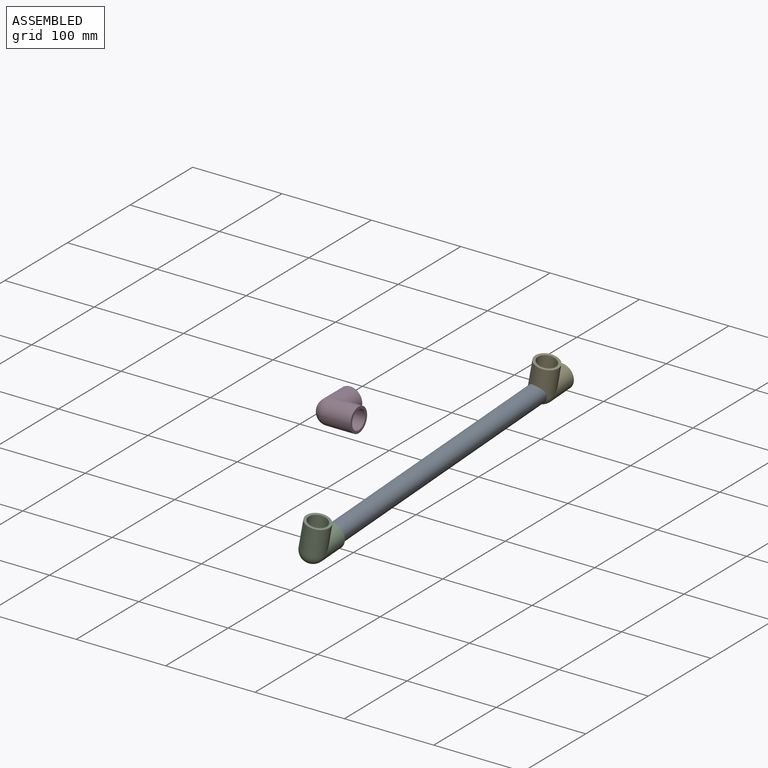
[diagram: assembled view]
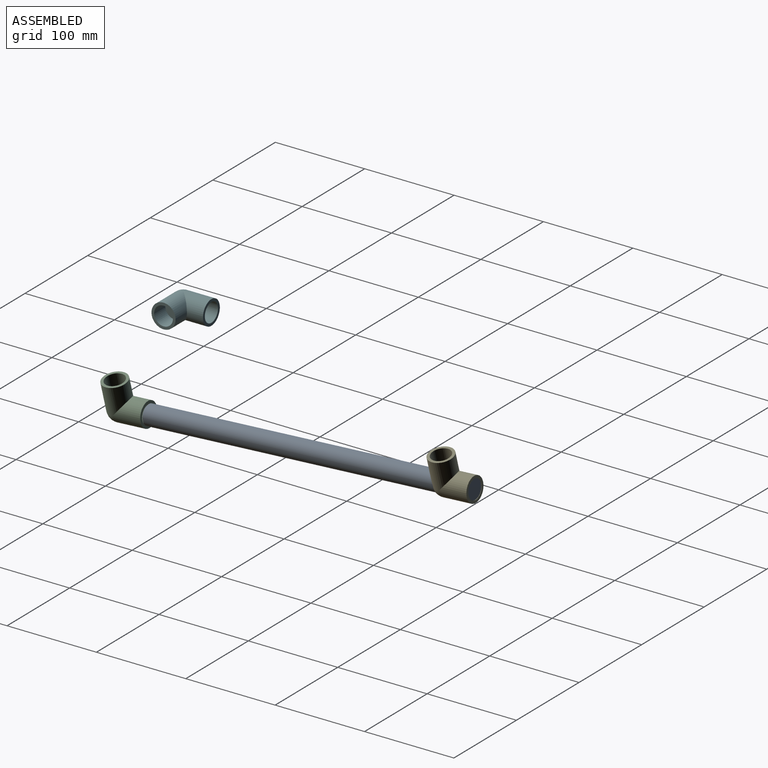
[diagram: assembled view, second angle]
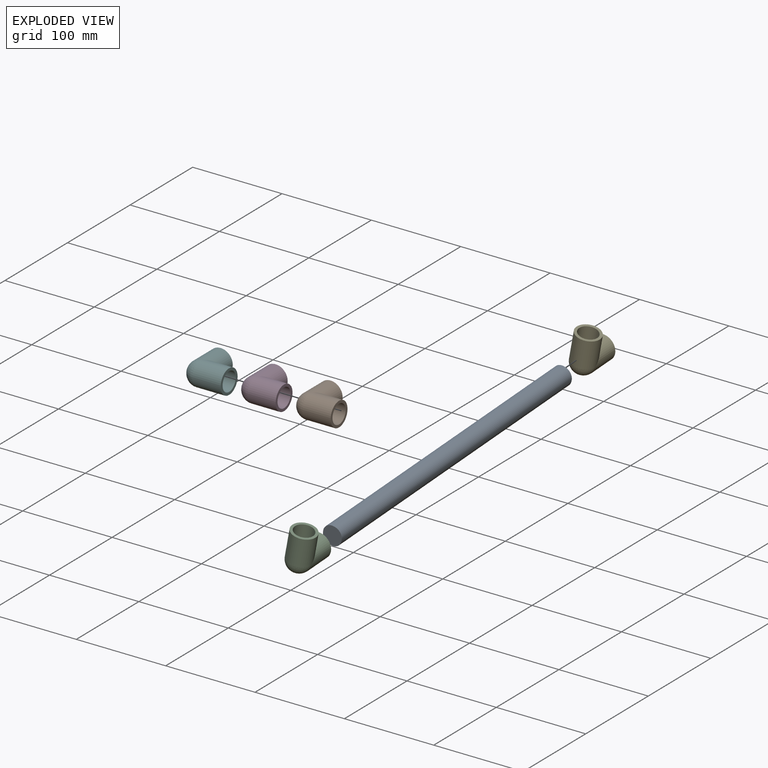
[diagram: exploded view]
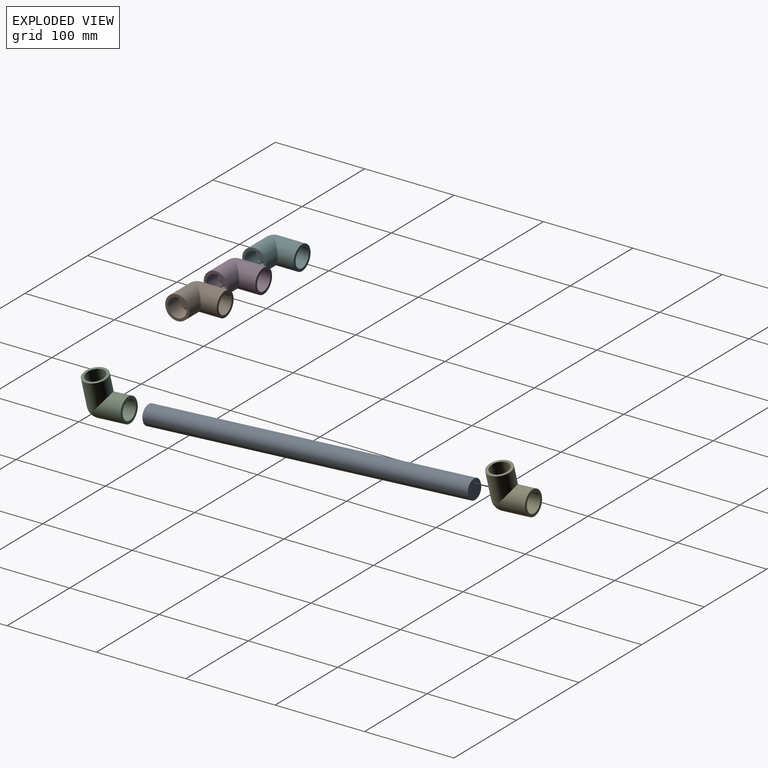
[diagram: exploded view, second angle]
ASSEMBLY  parts=6 mates=2
PART A: 10 faces, bbox 366x21x21 mm
  f0: plane 366x1mm, normal (0,0,1), area 366mm2, adj f1,f3,f7,f9
  f1: plane 21x21mm, normal (-1,0,0), area 355.2mm2, adj f0,f2,f4,f5,f6,f7,f8,f9
  f2: plane 366x1mm, normal (0,0,-1), area 366mm2, adj f1,f3,f6,f8
  f3: plane 21x21mm, normal (1,0,0), area 355.2mm2, adj f0,f2,f4,f5,f6,f7,f8,f9
  f4: plane 366x1mm, normal (0,-1,0), area 366mm2, adj f1,f3,f8,f9
  f5: plane 366x1mm, normal (0,1,0), area 366mm2, adj f1,f3,f6,f7
  f6: cylinder r=10mm len=366mm, axis (1,0,0), area 5749.1mm2, adj f1,f2,f3,f5
  f7: cylinder r=10mm len=366mm, axis (-1,0,0), area 5749.1mm2, adj f0,f1,f3,f5
  f8: cylinder r=10mm len=366mm, axis (-1,0,0), area 5749.1mm2, adj f1,f2,f3,f4
  f9: cylinder r=10mm len=366mm, axis (1,0,0), area 5749.1mm2, adj f0,f1,f3,f4
PART B: 9 faces, bbox 45x45x27 mm
  f0: plane 27x27mm, normal (0,1,0), area 226.2mm2, adj f2,f7
  f1: plane 27x27mm, normal (1,0,0), area 226.2mm2, adj f3,f5
  f2: cylinder r=13.5mm len=31.5mm, axis (0,-1,0), area 2307.4mm2, adj f0,f3,f4
  f3: cylinder r=13.5mm len=31.5mm, axis (1,0,0), area 2307.4mm2, adj f1,f2,f4
  f4: sphere r=13.5mm, area 572.6mm2, adj f2,f3
  f5: cylinder r=10.5mm len=21mm, axis (1,0,0), area 1187.5mm2, adj f1,f6
  f6: plane 21x21mm, normal (1,0,0), area 346.4mm2, adj f5
  f7: cylinder r=10.5mm len=21mm, axis (0,1,0), area 1187.5mm2, adj f0,f8
  f8: plane 21x21mm, normal (0,1,0), area 346.4mm2, adj f7
PART C: same geometry as B
PART D: same geometry as B
PART E: same geometry as B
PART F: same geometry as B
PLACE A rot(axis=(0.63,0.59,0.51),129.5deg) t=(-12.6,-4.15,-83.92)mm
PLACE B at identity
PLACE C rot(axis=(0.63,0.59,0.51),129.5deg) t=(-18.39,-31.64,-94.12)mm
PLACE D at identity
PLACE E rot(axis=(0.04,-1,-0.03),77.7deg) t=(13.63,307.79,-55.31)mm
PLACE F at identity
MATE fastened E.f7 <-> A.f8  axis (0,1,0.06) through (-4.82,340.15,-75.04)mm
MATE fastened A.f7 <-> C.f3  axis (0,-1,-0.06) through (-5.29,-25.19,-97.13)mm
